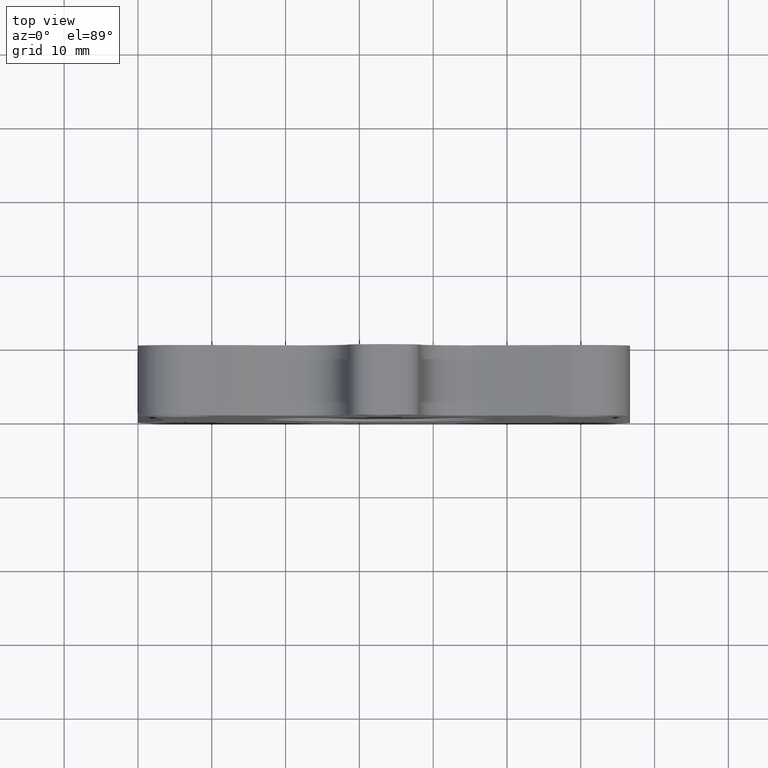
[diagram: clean part render]
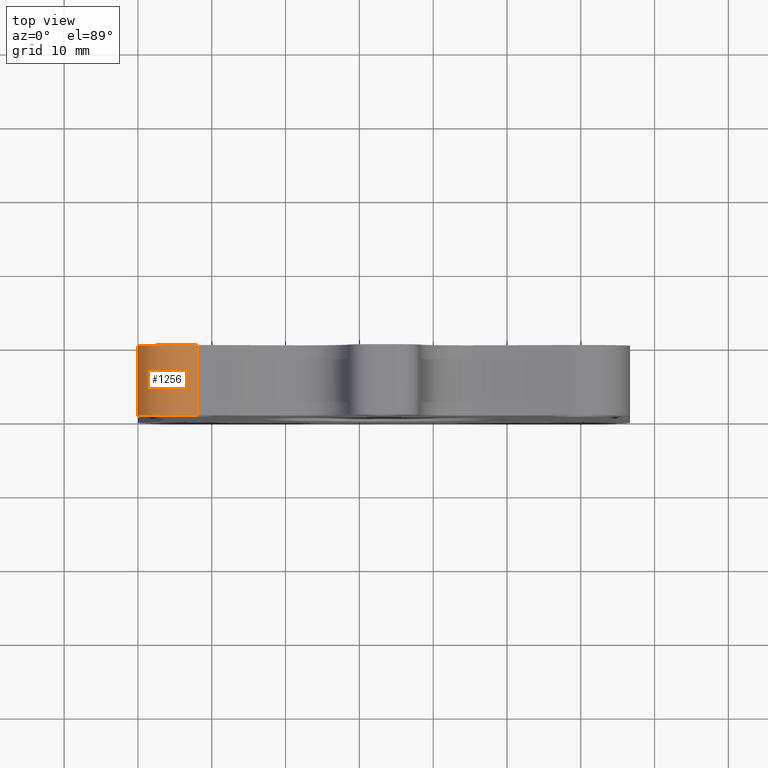
[diagram: same view with one face highlighted and labeled with its STEP entity id]
A machine part, top view. The second image highlights one B-rep face of the part: STEP entity #1256.
In plain terms, the highlighted cylindrical surface (partial cylindrical patch) has radius 6.35 mm, axis along (0, -1, 0).
Its self-contained STEP definition (entity closure, byte-faithful):
#12 = DIRECTION ( 'NONE',  ( -0.0000000000000000000, 1.000000000000000000, -0.0000000000000000000 ) ) ;
#28 = LINE ( 'NONE', #530, #1244 ) ;
#33 = CARTESIAN_POINT ( 'NONE',  ( 0.008633090566521018800, 0.3750000000000000600, -0.3151307533391929400 ) ) ;
#174 = CARTESIAN_POINT ( 'NONE',  ( 0.3151307533391928300, 0.0000000000000000000, -0.008633090566520781200 ) ) ;
#260 = EDGE_CURVE ( 'NONE', #541, #1147, #581, .T. ) ;
#265 = CARTESIAN_POINT ( 'NONE',  ( 0.2499999999999999700, 0.0000000000000000000, -0.2499999999999999700 ) ) ;
#327 = CARTESIAN_POINT ( 'NONE',  ( 0.3151307533391928300, 0.3750000000000000600, -0.008633090566520781200 ) ) ;
#371 = DIRECTION ( 'NONE',  ( 0.0000000000000000000, 0.0000000000000000000, -1.000000000000000000 ) ) ;
#374 = ORIENTED_EDGE ( 'NONE', *, *, #906, .F. ) ;
#382 = CARTESIAN_POINT ( 'NONE',  ( 0.3151307533391928300, 0.0000000000000000000, -0.008633090566520781200 ) ) ;
#385 = FACE_OUTER_BOUND ( 'NONE', #862, .T. ) ;
#416 = DIRECTION ( 'NONE',  ( 0.0000000000000000000, 0.0000000000000000000, -1.000000000000000000 ) ) ;
#446 = CARTESIAN_POINT ( 'NONE',  ( 0.008633090566521018800, 0.0000000000000000000, -0.3151307533391929400 ) ) ;
#489 = EDGE_CURVE ( 'NONE', #1224, #972, #636, .T. ) ;
#530 = CARTESIAN_POINT ( 'NONE',  ( 0.008633090566521018800, 0.0000000000000000000, -0.3151307533391929400 ) ) ;
#541 = VERTEX_POINT ( 'NONE', #33 ) ;
#581 = CIRCLE ( 'NONE', #1031, 0.2500000000000000600 ) ;
#618 = ORIENTED_EDGE ( 'NONE', *, *, #489, .F. ) ;
#636 = CIRCLE ( 'NONE', #1072, 0.2500000000000000600 ) ;
#731 = CARTESIAN_POINT ( 'NONE',  ( 0.2499999999999999700, 0.3750000000000000600, -0.2499999999999999700 ) ) ;
#787 = DIRECTION ( 'NONE',  ( 0.0000000000000000000, -1.000000000000000000, 0.0000000000000000000 ) ) ;
#816 = VECTOR ( 'NONE', #995, 39.37007874015748100 ) ;
#853 = DIRECTION ( 'NONE',  ( 0.0000000000000000000, 0.0000000000000000000, -1.000000000000000000 ) ) ;
#862 = EDGE_LOOP ( 'NONE', ( #1068, #374, #618, #1283 ) ) ;
#906 = EDGE_CURVE ( 'NONE', #972, #541, #28, .T. ) ;
#972 = VERTEX_POINT ( 'NONE', #446 ) ;
#995 = DIRECTION ( 'NONE',  ( -0.0000000000000000000, 1.000000000000000000, -0.0000000000000000000 ) ) ;
#1031 = AXIS2_PLACEMENT_3D ( 'NONE', #731, #12, #853 ) ;
#1068 = ORIENTED_EDGE ( 'NONE', *, *, #260, .F. ) ;
#1072 = AXIS2_PLACEMENT_3D ( 'NONE', #265, #1092, #371 ) ;
#1092 = DIRECTION ( 'NONE',  ( 0.0000000000000000000, -1.000000000000000000, 0.0000000000000000000 ) ) ;
#1110 = LINE ( 'NONE', #382, #816 ) ;
#1147 = VERTEX_POINT ( 'NONE', #327 ) ;
#1171 = AXIS2_PLACEMENT_3D ( 'NONE', #1234, #787, #416 ) ;
#1224 = VERTEX_POINT ( 'NONE', #174 ) ;
#1234 = CARTESIAN_POINT ( 'NONE',  ( 0.2499999999999999700, 0.3750000000000000600, -0.2499999999999999700 ) ) ;
#1244 = VECTOR ( 'NONE', #1353, 39.37007874015748100 ) ;
#1253 = CYLINDRICAL_SURFACE ( 'NONE', #1171, 0.2500000000000000600 ) ;
#1256 = ADVANCED_FACE ( 'NONE', ( #385 ), #1253, .T. ) ;
#1283 = ORIENTED_EDGE ( 'NONE', *, *, #1432, .T. ) ;
#1353 = DIRECTION ( 'NONE',  ( -0.0000000000000000000, 1.000000000000000000, -0.0000000000000000000 ) ) ;
#1432 = EDGE_CURVE ( 'NONE', #1224, #1147, #1110, .T. ) ;